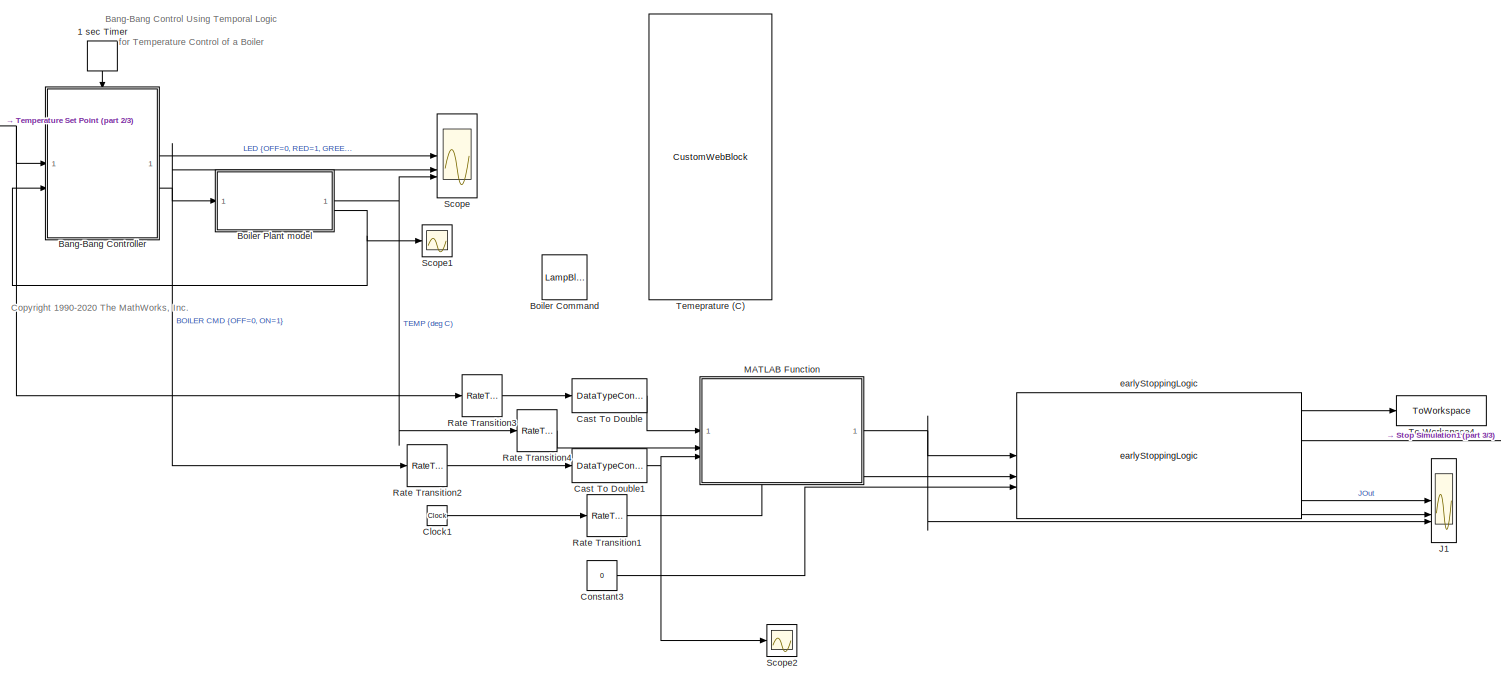
[diagram: root canvas - part 1/3, most of the canvas]
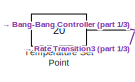
[diagram: root canvas - part 2/3, top left region]
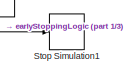
[diagram: root canvas - part 3/3, middle right region]
MODEL slx_44f87e07a26e
KIND model
CONFIG AbsTol = auto
CONFIG EnableMultiTasking = on
CONFIG FixedStep = auto
CONFIG MaxStep = auto
CONFIG MinStep = auto
CONFIG RelTol = 1e-3
CONFIG SampleTimeConstraint = Unconstrained
CONFIG SolverName = ode45
CONFIG StartTime = 0.0
CONFIG StopTime = ESSettings.tend
BLOCK [DiscretePulseGenerator] 1 sec Timer
  Amplitude = int8(1)
  NameLocation = left
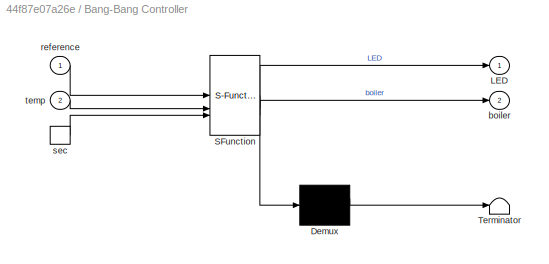
BLOCK [SubSystem] Bang-Bang Controller
  ErrorFcn = Stateflow.Translate.translate
  PermitHierarchicalResolution = ExplicitOnly
  SFBlockType = Chart
  TreatAsAtomicUnit = on
BLOCK [Demux] Bang-Bang Controller/ Demux 
  Outputs = 1
BLOCK [S-Function] Bang-Bang Controller/ SFunction 
  EnableBusSupport = on
  FunctionName = sf_sfun
  Parameters = CtrlPar
  PortCounts = [3 3]
  SFcnIsStateOwnerBlock = off
  SFunctionDeploymentMode = off
  Tag = Stateflow S-Function 7
BLOCK [Terminator] Bang-Bang Controller/ Terminator 
BLOCK [Outport] Bang-Bang Controller/LED
  VectorParamsAs1DForOutWhenUnconnected = off
BLOCK [Outport] Bang-Bang Controller/boiler
  Port = 2
  VectorParamsAs1DForOutWhenUnconnected = off
BLOCK [Inport] Bang-Bang Controller/reference
BLOCK [TriggerPort] Bang-Bang Controller/sec
  ShowOutputPort = on
  VariantControl = Variant
  ZeroCross = off
BLOCK [Inport] Bang-Bang Controller/temp
  Port = 2
BLOCK [LampBlock] Boiler Command
  LabelPosition = Hide
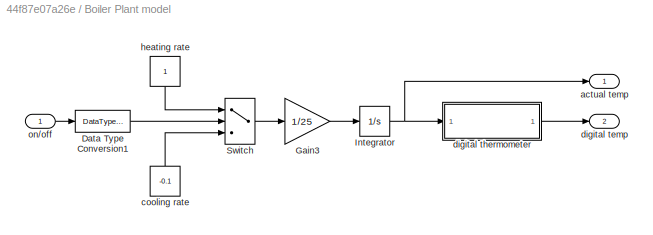
BLOCK [SubSystem] Boiler Plant model
BLOCK [DataTypeConversion] Boiler Plant model/Data Type Conversion1
  OutDataTypeStr = boolean
BLOCK [Gain] Boiler Plant model/Gain3
  Gain = 1/25
  NameLocation = top
  OutDataTypeStr = Inherit: Same as input
  ParamDataTypeStr = Inherit: Same as input
  SaturateOnIntegerOverflow = on
BLOCK [Integrator] Boiler Plant model/Integrator
  InitialCondition = 15
  ZeroCross = off
BLOCK [Switch] Boiler Plant model/Switch
  Threshold = .5
BLOCK [Outport] Boiler Plant model/actual temp
  VectorParamsAs1DForOutWhenUnconnected = off
BLOCK [Constant] Boiler Plant model/cooling rate
  NameLocation = left
  Value = -0.1
BLOCK [Outport] Boiler Plant model/digital temp
  Port = 2
  VectorParamsAs1DForOutWhenUnconnected = off
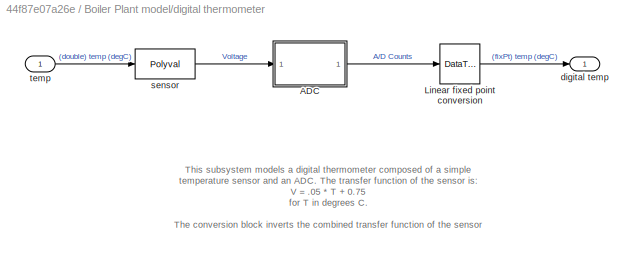
BLOCK [SubSystem] Boiler Plant model/digital thermometer
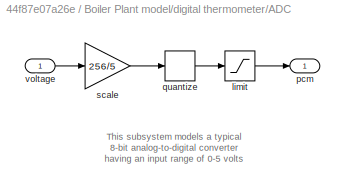
BLOCK [SubSystem] Boiler Plant model/digital thermometer/ADC
  ShowPortLabels = none
BLOCK [Saturate] Boiler Plant model/digital thermometer/ADC/limit
  LowerLimit = 0
  UpperLimit = 255
BLOCK [Outport] Boiler Plant model/digital thermometer/ADC/pcm
  VectorParamsAs1DForOutWhenUnconnected = off
BLOCK [Quantizer] Boiler Plant model/digital thermometer/ADC/quantize
  QuantizationInterval = 1
BLOCK [Gain] Boiler Plant model/digital thermometer/ADC/scale
  Gain = 256/5
  OutDataTypeStr = Inherit: Same as input
  ParamDataTypeStr = Inherit: Same as input
  SaturateOnIntegerOverflow = on
BLOCK [Inport] Boiler Plant model/digital thermometer/ADC/voltage
BLOCK [DataTypeConversion] Boiler Plant model/digital thermometer/Linear fixed point conversion
  ConvertRealWorld = Stored Integer (SI)
  OutDataTypeStr = fixdt(1, 8, 5/256/0.05, -0.75/0.05)
  RndMeth = Floor
  SaturateOnIntegerOverflow = off
BLOCK [Outport] Boiler Plant model/digital thermometer/digital temp
  VectorParamsAs1DForOutWhenUnconnected = off
BLOCK [Polyval] Boiler Plant model/digital thermometer/sensor
  Coefs = [ 0.05     0.75 ]
BLOCK [Inport] Boiler Plant model/digital thermometer/temp
BLOCK [Constant] Boiler Plant model/heating rate
  NameLocation = left
BLOCK [Inport] Boiler Plant model/on//off
BLOCK [DataTypeConversion] Cast To Double
  OutDataTypeStr = double
  RndMeth = Floor
  SaturateOnIntegerOverflow = off
BLOCK [DataTypeConversion] Cast To Double1
  OutDataTypeStr = double
  RndMeth = Floor
  SaturateOnIntegerOverflow = off
BLOCK [Clock] Clock1
BLOCK [Constant] Constant3
  Value = 0
BLOCK [Scope] J1
  Floating = off
  NumInputPorts = 3
  ScopeSpecificationString = Simulink.scopes.TimeScopeBlockCfg('CurrentConfiguration', extmgr.ConfigurationSet(extmgr.Configuration('Core','General UI',true),extmgr.Configuration('Core','Source UI',true),extmgr.Configuration('Sources','WiredSimulink',true,'DataLoggingVariableName','ScopeData2'),extmgr.Configuration('Visuals','Time Domain',true,'SerializedDisplays',{struct('MinYLimReal','598.49109','MaxYLimReal','615.29224','Y...<+2230ch>
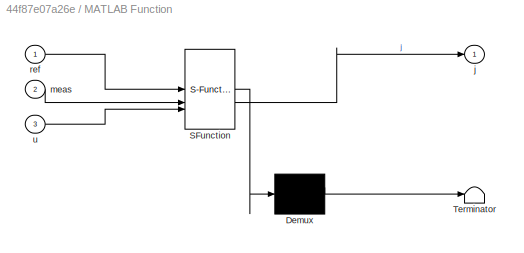
BLOCK [SubSystem] MATLAB Function
  ErrorFcn = Stateflow.Translate.translate
  PermitHierarchicalResolution = ExplicitOnly
  SFBlockType = MATLAB Function
  TreatAsAtomicUnit = on
BLOCK [Demux] MATLAB Function/ Demux 
  Outputs = 1
BLOCK [S-Function] MATLAB Function/ SFunction 
  EnableBusSupport = on
  FunctionName = sf_sfun
  PortCounts = [3 2]
  SFcnIsStateOwnerBlock = off
  SFunctionDeploymentMode = off
  Tag = Stateflow S-Function 2
BLOCK [Terminator] MATLAB Function/ Terminator 
BLOCK [Outport] MATLAB Function/j
BLOCK [Inport] MATLAB Function/meas
  Port = 2
BLOCK [Inport] MATLAB Function/ref
BLOCK [Inport] MATLAB Function/u
  Port = 3
BLOCK [RateTransition] Rate Transition1
  OutPortSampleTime = ESSettings.t_obj
BLOCK [RateTransition] Rate Transition2
  OutPortSampleTime = ESSettings.t_obj
BLOCK [RateTransition] Rate Transition3
  OutPortSampleTime = ESSettings.t_obj
BLOCK [RateTransition] Rate Transition4
  OutPortSampleTime = ESSettings.t_obj
BLOCK [Scope] Scope
  Floating = off
  NumInputPorts = 3
  ScopeSpecificationString = Simulink.scopes.TimeScopeBlockCfg('CurrentConfiguration', extmgr.ConfigurationSet(extmgr.Configuration('Core','General UI',true),extmgr.Configuration('Core','Source UI',true),extmgr.Configuration('Sources','WiredSimulink',true,'DataLoggingSaveFormat','StructureWithTime','DataLoggingLimitDataPoints',true,'DataLoggingDecimation','1','DataLoggingDecimateData',true),extmgr.Configuration('Visuals','Tim...<+3107ch>
BLOCK [Scope] Scope1
  Floating = off
  NumInputPorts = 1
  ScopeSpecificationString = Simulink.scopes.TimeScopeBlockCfg('CurrentConfiguration', extmgr.ConfigurationSet(extmgr.Configuration('Core','General UI',true),extmgr.Configuration('Core','Source UI',true),extmgr.Configuration('Sources','WiredSimulink',true,'DataLoggingVariableName','ScopeData1'),extmgr.Configuration('Visuals','Time Domain',true,'SerializedDisplays',{struct('MinYLimReal','19.54102','MaxYLimReal','20.38619','YLa...<+1461ch>
BLOCK [Scope] Scope2
  Floating = off
  NumInputPorts = 1
  ScopeSpecificationString = Simulink.scopes.TimeScopeBlockCfg('CurrentConfiguration', extmgr.ConfigurationSet(extmgr.Configuration('Core','General UI',true),extmgr.Configuration('Core','Source UI',true),extmgr.Configuration('Sources','WiredSimulink',true,'DataLoggingVariableName','ScopeData3'),extmgr.Configuration('Visuals','Time Domain',true,'SerializedDisplays',{struct('MinYLimReal','-0.125','MaxYLimReal','1.125','YLabelRe...<+1362ch>
BLOCK [Stop] Stop Simulation1
BLOCK [CustomWebBlock] Temeprature (C)
  Configuration = {"components":[{"name":"LinearScaleComponent","settings":{"bounds":{"max":22,"min":14,"tickInterval":1},"internalTickHeightScaleFactor":0.5,"labelColor":[38,38,38],"labelFont":{"font":"Arial","fontSize":12},"labelOffset":0.05,"labelTransparency":1,"needleImage":{"size":[0,0],"src":"","srcOrientation":"Right"},"needleOffset":[0,0],"needleSize":{"height":0,"width":0},"position":[0.06567112546125461,...<+3223ch>
  LabelPosition = Hide
  ShowInitialText = on
BLOCK [Constant] Temperature Set Point
  OutDataTypeStr = Inherit: Inherit via back propagation
  Value = 20
BLOCK [ToWorkspace] To Workspace4
  FixptAsFi = on
  MaxDataPoints = inf
  SampleTime = -1
  SaveFormat = Structure With Time
  VariableName = j
BLOCK [Reference] earlyStoppingLogic  REF=UtilLib/earlyStoppingLogic
  SourceBlock = UtilLib/earlyStoppingLogic
  SourceType = SubSystem
ANNOTATION (root): Bang-Bang Control Using Temporal Logic for Temperature Control of a Boiler
ANNOTATION (root): <copyright redacted>
ANNOTATION Boiler Plant model/digital thermometer: This subsystem models a digital thermometer composed of a simple temperature sensor and an ADC. The transfer function of the sensor is: V = .05 * T + 0.75 for T in degrees C. The conversion block inverts the combined transfer function of the sensor and ADC so that the output is an sfix(8) code representing T in degrees C.
ANNOTATION Boiler Plant model/digital thermometer/ADC: This subsystem models a typical 8-bit analog-to-digital converter having an input range of 0-5 volts
LINE 1 sec Timer:1 -> Bang-Bang Controller:trigger
LINE Bang-Bang Controller:1 -> Scope:1
NET Bang-Bang Controller:2 -> Boiler Plant model:1, Rate Transition2:1, Scope:2
LINE Boiler Plant model/Data Type Conversion1:1 -> Boiler Plant model/Switch:2
LINE Boiler Plant model/Gain3:1 -> Boiler Plant model/Integrator:1
NET Boiler Plant model/Integrator:1 -> Boiler Plant model/actual temp:1, Boiler Plant model/digital thermometer:1
LINE Boiler Plant model/Switch:1 -> Boiler Plant model/Gain3:1
LINE Boiler Plant model/cooling rate:1 -> Boiler Plant model/Switch:3
LINE Boiler Plant model/digital thermometer/ADC/limit:1 -> Boiler Plant model/digital thermometer/ADC/pcm:1
LINE Boiler Plant model/digital thermometer/ADC/quantize:1 -> Boiler Plant model/digital thermometer/ADC/limit:1
LINE Boiler Plant model/digital thermometer/ADC/scale:1 -> Boiler Plant model/digital thermometer/ADC/quantize:1
LINE Boiler Plant model/digital thermometer/ADC/voltage:1 -> Boiler Plant model/digital thermometer/ADC/scale:1
LINE Boiler Plant model/digital thermometer/ADC:1 -> Boiler Plant model/digital thermometer/Linear fixed point conversion:1
LINE Boiler Plant model/digital thermometer/Linear fixed point conversion:1 -> Boiler Plant model/digital thermometer/digital temp:1
LINE Boiler Plant model/digital thermometer/sensor:1 -> Boiler Plant model/digital thermometer/ADC:1
LINE Boiler Plant model/digital thermometer/temp:1 -> Boiler Plant model/digital thermometer/sensor:1
LINE Boiler Plant model/digital thermometer:1 -> Boiler Plant model/digital temp:1
LINE Boiler Plant model/heating rate:1 -> Boiler Plant model/Switch:1
LINE Boiler Plant model/on//off:1 -> Boiler Plant model/Data Type Conversion1:1
NET Boiler Plant model:1 -> Rate Transition4:1, Scope:3
NET Boiler Plant model:2 -> Bang-Bang Controller:2, Scope1:1
NET Cast To Double1:1 -> MATLAB Function:3, Scope2:1
LINE Cast To Double:1 -> MATLAB Function:1
LINE Clock1:1 -> Rate Transition1:1
LINE Constant3:1 -> earlyStoppingLogic:3
NET MATLAB Function:1 -> J1:3, earlyStoppingLogic:1
LINE Rate Transition1:1 -> earlyStoppingLogic:2
LINE Rate Transition2:1 -> Cast To Double1:1
LINE Rate Transition3:1 -> Cast To Double:1
LINE Rate Transition4:1 -> MATLAB Function:2
NET Temperature Set Point:1 -> Bang-Bang Controller:1, Rate Transition3:1
LINE earlyStoppingLogic:1 -> To Workspace4:1
LINE earlyStoppingLogic:2 -> Stop Simulation1:1
LINE earlyStoppingLogic:3 -> J1:1
LINE earlyStoppingLogic:4 -> J1:2
note: NET lines group one-source signal fan-out (src -> all destinations, sorted); 1:1 wires keep LINE
CHART MATLAB Function states=1 transitions=1
  STATE_LABEL 'eML_blk_kernel()'
  STATE_LABEL 'SCRIPT:\nfunction j  = fcn(ref, meas,u)\npersistent u_prev\n\nif isempty(u_prev)\n    u_prev = 0;\nend\n\ncomfortSacling = 0.5;\n\ncomfort = comfortSacling*(min(abs(ref-meas),2))^2;\nenergyCost = u;\n\nj = comfort + energyCost;\n\nif u > u_prev\n        j =  j + 8;\nend\n\nu_prev = u;\nend'
CHART Bang-Bang
Controller states=9 transitions=21
  STATE_LABEL 'Heater'
  STATE_LABEL 'Off\nentry: turn_boiler(OFF)\non every(5,sec): flash_LED()'
  STATE_LABEL 'On\nen: turn_boiler(ON)\ndu: flash_LED()'
  STATE_LABEL 'HIGH'
  STATE_LABEL 'NORM'
  STATE_LABEL 'b = warm()'
  STATE_LABEL '{b = !cold()}'
  STATE_LABEL '[Heater.On.warm()]'
  STATE_LABEL '[warm()]'
  STATE_LABEL 'H'
  STATE_LABEL 'after(100,sec)'
  STATE_LABEL 'after(CtrlPar.TurnOnDelay ,sec)\n[cold()]'
  STATE_LABEL '[Heater.On.warm()]'
  STATE_LABEL '[Heater.On.warm()]'
  STATE_LABEL 'Off\nentry: turn_boiler(OFF)\non every(5,sec): flash_LED()'
  STATE_LABEL 'On\nen: turn_boiler(ON)\ndu: flash_LED()'
  STATE_LABEL 'HIGH'
  STATE_LABEL 'NORM'
  STATE_LABEL 'b = warm()'
  STATE_LABEL '{b = !cold()}'
  STATE_LABEL '[Heater.On.warm()]'
  STATE_LABEL '[warm()]'
  STATE_LABEL 'H'
  STATE_LABEL 'HIGH'
  STATE_LABEL 'NORM'
  STATE_LABEL 'b = warm()'
  STATE_LABEL '{b = !cold()}'
  STATE_LABEL 'turn_boiler(mode)'
  STATE_LABEL '[mode==ON]'
  STATE_LABEL '{color=RED}'
  STATE_LABEL '{color=GREEN}'
  STATE_LABEL '{LED=color;\n boiler=mode}'
  STATE_LABEL 'flash_LED()'
  STATE_LABEL '[LED==OFF]'
  STATE_LABEL '{LED=OFF}'
  STATE_LABEL '{LED=color}'
  STATE_LABEL 'b = cold()'
  STATE_LABEL '{ b = temp<=reference}'
CHART  states=0 transitions=0
CHART  states=0 transitions=0
